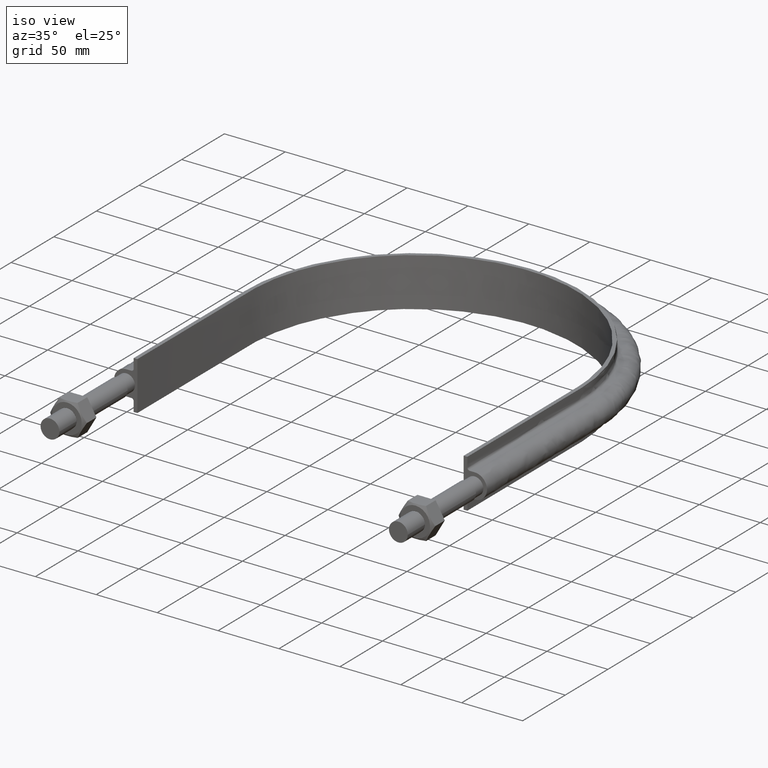
[diagram: clean part render]
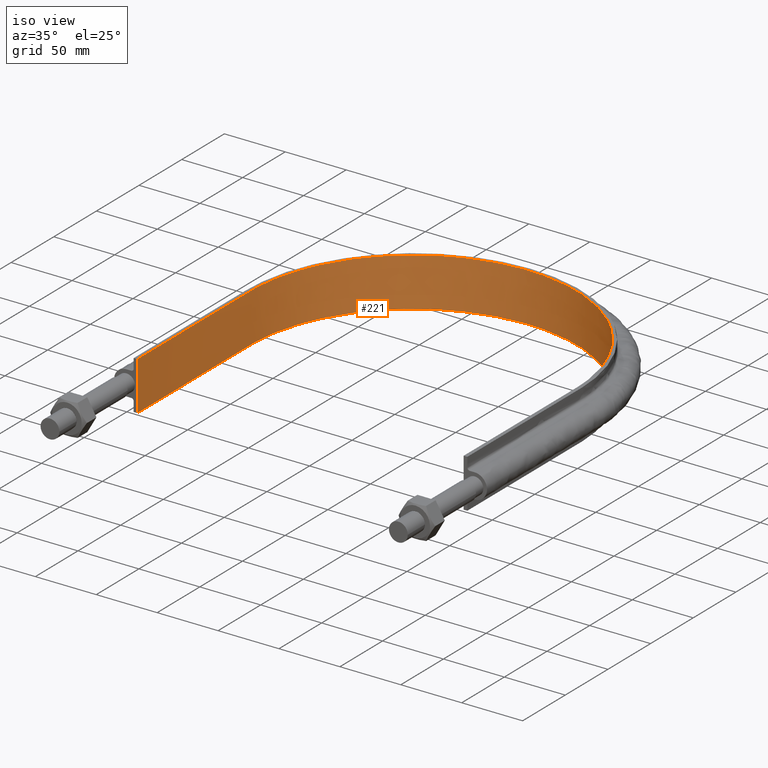
[diagram: same view with one face highlighted and labeled with its STEP entity id]
A machine part, iso view. The second image highlights one B-rep face of the part: STEP entity #221.
In plain terms, the highlighted face is a SurfaceOfExtrusion surface.
Its self-contained STEP definition (entity closure, byte-faithful):
#221 = ADVANCED_FACE( '', ( #283 ), #284, .T. );
#283 = FACE_OUTER_BOUND( '', #608, .T. );
#284 = SURFACE_OF_LINEAR_EXTRUSION( '', #609, #610 );
#608 = EDGE_LOOP( '', ( #1572, #1573, #1574, #1575 ) );
#609 = B_SPLINE_CURVE_WITH_KNOTS( '', 3, ( #1576, #1577, #1578, #1579, #1580, #1581, #1582, #1583, #1584, #1585, #1586, #1587, #1588, #1589, #1590, #1591, #1592 ), .UNSPECIFIED., .F., .F., ( 4, 3, 1, 1, 1, 1, 1, 1, 1, 3, 4 ), ( -10.0000000000000, -9.00000000000000, -8.00000000000000, -7.00000000000000, -6.00000000000000, -5.00000000000000, -4.00000000000000, -3.00000000000000, -2.00000000000000, -1.00000000000000, 0.000000000000000 ), .UNSPECIFIED. );
#610 = VECTOR( '', #1593, 1000.00000000000 );
#1572 = ORIENTED_EDGE( '', *, *, #2048, .T. );
#1573 = ORIENTED_EDGE( '', *, *, #2049, .F. );
#1574 = ORIENTED_EDGE( '', *, *, #2050, .F. );
#1575 = ORIENTED_EDGE( '', *, *, #2051, .T. );
#1576 = CARTESIAN_POINT( '', ( -133.950000000000, 89.5000000000001, -440.423363781454 ) );
#1577 = CARTESIAN_POINT( '', ( -133.950000000000, 133.683333333333, -440.423363781454 ) );
#1578 = CARTESIAN_POINT( '', ( -133.950000000000, 177.866666666667, -440.423363781454 ) );
#1579 = CARTESIAN_POINT( '', ( -133.950000000000, 222.050000000000, -440.423363781454 ) );
#1580 = CARTESIAN_POINT( '', ( -133.950000000000, 239.566032700257, -440.423363781454 ) );
#1581 = CARTESIAN_POINT( '', ( -126.975474198415, 274.652216480459, -440.423363781454 ) );
#1582 = CARTESIAN_POINT( '', ( -97.1828205848687, 319.230867859828, -440.423363781454 ) );
#1583 = CARTESIAN_POINT( '', ( -52.5949635017385, 349.026032119855, -440.423363781454 ) );
#1584 = CARTESIAN_POINT( '', ( 9.95341556962034E-014, 359.486983940073, -440.423363781454 ) );
#1585 = CARTESIAN_POINT( '', ( 52.5949635017385, 349.026032119855, -440.423363781454 ) );
#1586 = CARTESIAN_POINT( '', ( 97.1828205848688, 319.230867859828, -440.423363781454 ) );
#1587 = CARTESIAN_POINT( '', ( 126.975474198415, 274.652216480460, -440.423363781454 ) );
#1588 = CARTESIAN_POINT( '', ( 133.950000000000, 239.566032700257, -440.423363781454 ) );
#1589 = CARTESIAN_POINT( '', ( 133.950000000000, 222.050000000000, -440.423363781454 ) );
#1590 = CARTESIAN_POINT( '', ( 133.950000000000, 177.866666666667, -440.423363781454 ) );
#1591 = CARTESIAN_POINT( '', ( 133.950000000000, 133.683333333333, -440.423363781454 ) );
#1592 = CARTESIAN_POINT( '', ( 133.950000000000, 89.5000000000000, -440.423363781454 ) );
#1593 = DIRECTION( '', ( 0.000000000000000, 0.000000000000000, 1.00000000000000 ) );
#2048 = EDGE_CURVE( '', #2158, #2159, #2160, .T. );
#2049 = EDGE_CURVE( '', #2161, #2159, #2162, .T. );
#2050 = EDGE_CURVE( '', #2163, #2161, #2164, .T. );
#2051 = EDGE_CURVE( '', #2163, #2158, #2165, .T. );
#2158 = VERTEX_POINT( '', #2476 );
#2159 = VERTEX_POINT( '', #2477 );
#2160 = LINE( '', #2478, #2479 );
#2161 = VERTEX_POINT( '', #2480 );
#2162 = B_SPLINE_CURVE_WITH_KNOTS( '', 3, ( #2481, #2482, #2483, #2484, #2485, #2486, #2487, #2488, #2489, #2490, #2491, #2492, #2493, #2494, #2495, #2496, #2497 ), .UNSPECIFIED., .F., .F., ( 4, 3, 1, 1, 1, 1, 1, 1, 1, 3, 4 ), ( -10.0000000000000, -9.00000000000000, -8.00000000000000, -7.00000000000000, -6.00000000000000, -5.00000000000000, -4.00000000000000, -3.00000000000000, -2.00000000000000, -1.00000000000000, 0.000000000000000 ), .UNSPECIFIED. );
#2163 = VERTEX_POINT( '', #2498 );
#2164 = LINE( '', #2499, #2500 );
#2165 = B_SPLINE_CURVE_WITH_KNOTS( '', 3, ( #2501, #2502, #2503, #2504, #2505, #2506, #2507, #2508, #2509, #2510, #2511, #2512, #2513, #2514, #2515, #2516, #2517 ), .UNSPECIFIED., .F., .F., ( 4, 3, 1, 1, 1, 1, 1, 1, 1, 3, 4 ), ( -10.0000000000000, -9.00000000000000, -8.00000000000000, -7.00000000000000, -6.00000000000000, -5.00000000000000, -4.00000000000000, -3.00000000000000, -2.00000000000000, -1.00000000000000, 0.000000000000000 ), .UNSPECIFIED. );
#2476 = CARTESIAN_POINT( '', ( 133.950000000000, 89.5000000000000, -20.0000000000000 ) );
#2477 = CARTESIAN_POINT( '', ( 133.950000000000, 89.5000000000000, 20.0000000000000 ) );
#2478 = CARTESIAN_POINT( '', ( 133.950000000000, 89.5000000000000, -440.423363781454 ) );
#2479 = VECTOR( '', #3144, 1000.00000000000 );
#2480 = CARTESIAN_POINT( '', ( -133.950000000000, 89.5000000000001, 20.0000000000000 ) );
#2481 = CARTESIAN_POINT( '', ( -133.950000000000, 89.5000000000001, 20.0000000000000 ) );
#2482 = CARTESIAN_POINT( '', ( -133.950000000000, 133.683333333333, 20.0000000000000 ) );
#2483 = CARTESIAN_POINT( '', ( -133.950000000000, 177.866666666667, 20.0000000000000 ) );
#2484 = CARTESIAN_POINT( '', ( -133.950000000000, 222.050000000000, 20.0000000000000 ) );
#2485 = CARTESIAN_POINT( '', ( -133.950000000000, 239.566032700257, 20.0000000000000 ) );
#2486 = CARTESIAN_POINT( '', ( -126.975474198415, 274.652216480459, 20.0000000000000 ) );
#2487 = CARTESIAN_POINT( '', ( -97.1828205848687, 319.230867859828, 20.0000000000000 ) );
#2488 = CARTESIAN_POINT( '', ( -52.5949635017385, 349.026032119855, 20.0000000000000 ) );
#2489 = CARTESIAN_POINT( '', ( 9.95341556962034E-014, 359.486983940073, 20.0000000000000 ) );
#2490 = CARTESIAN_POINT( '', ( 52.5949635017385, 349.026032119855, 20.0000000000000 ) );
#2491 = CARTESIAN_POINT( '', ( 97.1828205848688, 319.230867859828, 20.0000000000000 ) );
#2492 = CARTESIAN_POINT( '', ( 126.975474198415, 274.652216480460, 20.0000000000000 ) );
#2493 = CARTESIAN_POINT( '', ( 133.950000000000, 239.566032700257, 20.0000000000000 ) );
#2494 = CARTESIAN_POINT( '', ( 133.950000000000, 222.050000000000, 20.0000000000000 ) );
#2495 = CARTESIAN_POINT( '', ( 133.950000000000, 177.866666666667, 20.0000000000000 ) );
#2496 = CARTESIAN_POINT( '', ( 133.950000000000, 133.683333333333, 20.0000000000000 ) );
#2497 = CARTESIAN_POINT( '', ( 133.950000000000, 89.5000000000000, 20.0000000000000 ) );
#2498 = CARTESIAN_POINT( '', ( -133.950000000000, 89.5000000000001, -20.0000000000000 ) );
#2499 = CARTESIAN_POINT( '', ( -133.950000000000, 89.5000000000001, -440.423363781454 ) );
#2500 = VECTOR( '', #3145, 1000.00000000000 );
#2501 = CARTESIAN_POINT( '', ( -133.950000000000, 89.5000000000001, -20.0000000000000 ) );
#2502 = CARTESIAN_POINT( '', ( -133.950000000000, 133.683333333333, -20.0000000000000 ) );
#2503 = CARTESIAN_POINT( '', ( -133.950000000000, 177.866666666667, -20.0000000000000 ) );
#2504 = CARTESIAN_POINT( '', ( -133.950000000000, 222.050000000000, -20.0000000000000 ) );
#2505 = CARTESIAN_POINT( '', ( -133.950000000000, 239.566032700257, -20.0000000000000 ) );
#2506 = CARTESIAN_POINT( '', ( -126.975474198415, 274.652216480459, -20.0000000000000 ) );
#2507 = CARTESIAN_POINT( '', ( -97.1828205848687, 319.230867859828, -20.0000000000000 ) );
#2508 = CARTESIAN_POINT( '', ( -52.5949635017385, 349.026032119855, -20.0000000000000 ) );
#2509 = CARTESIAN_POINT( '', ( 9.95341556962034E-014, 359.486983940073, -20.0000000000000 ) );
#2510 = CARTESIAN_POINT( '', ( 52.5949635017385, 349.026032119855, -20.0000000000000 ) );
#2511 = CARTESIAN_POINT( '', ( 97.1828205848688, 319.230867859828, -20.0000000000000 ) );
#2512 = CARTESIAN_POINT( '', ( 126.975474198415, 274.652216480460, -20.0000000000000 ) );
#2513 = CARTESIAN_POINT( '', ( 133.950000000000, 239.566032700257, -20.0000000000000 ) );
#2514 = CARTESIAN_POINT( '', ( 133.950000000000, 222.050000000000, -20.0000000000000 ) );
#2515 = CARTESIAN_POINT( '', ( 133.950000000000, 177.866666666667, -20.0000000000000 ) );
#2516 = CARTESIAN_POINT( '', ( 133.950000000000, 133.683333333333, -20.0000000000000 ) );
#2517 = CARTESIAN_POINT( '', ( 133.950000000000, 89.5000000000000, -20.0000000000000 ) );
#3144 = DIRECTION( '', ( 0.000000000000000, 0.000000000000000, 1.00000000000000 ) );
#3145 = DIRECTION( '', ( 0.000000000000000, 0.000000000000000, 1.00000000000000 ) );